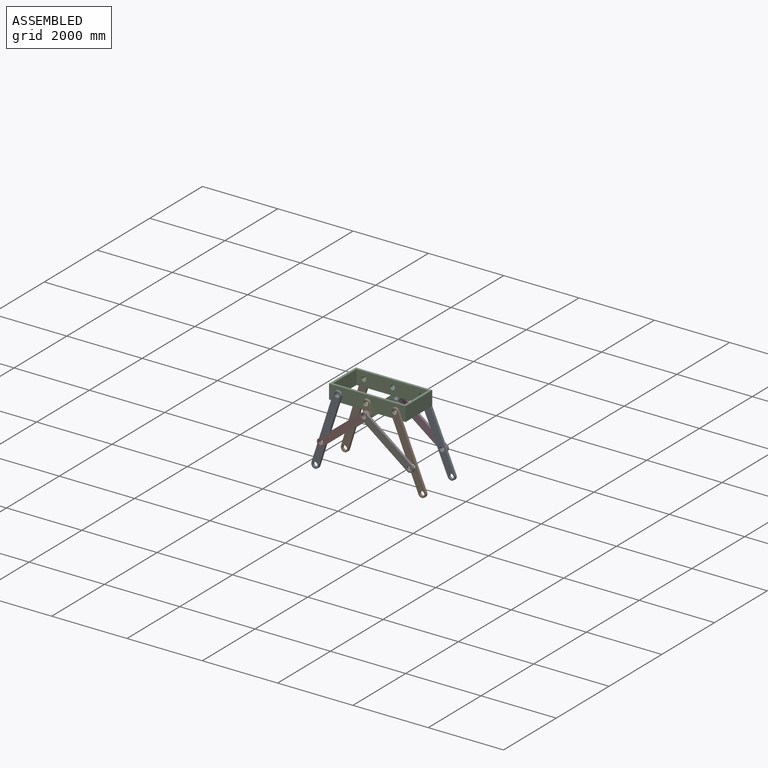
[diagram: assembled view]
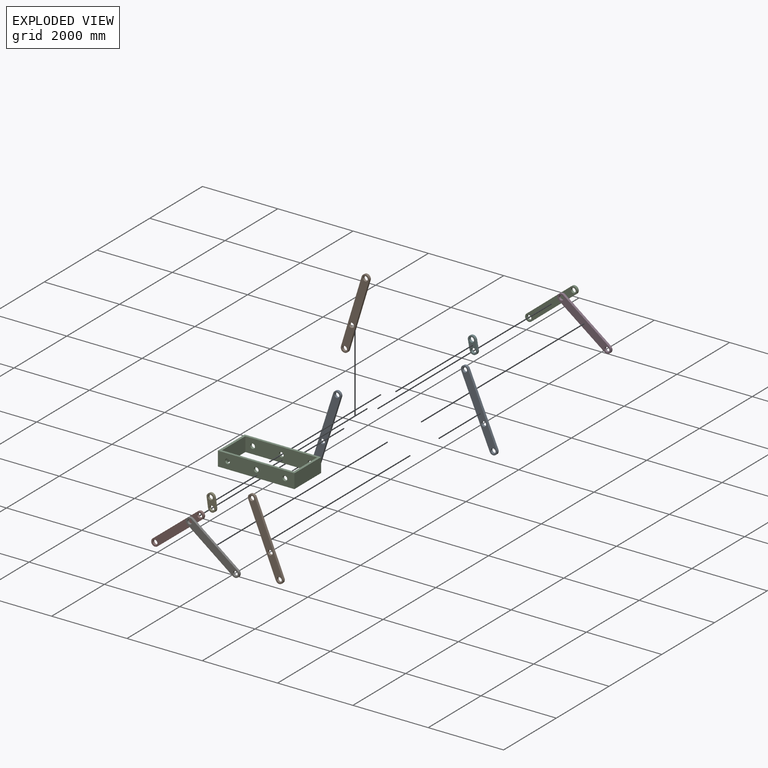
[diagram: exploded view]
GUIDED TOUR — MATED ASSEMBLY (Onshape document 3dce22146bce725d61f7c5aa, AutoMate assembly 3dce22146bce725d61f7c5aa_5e1583285dce9e8a177f980a_4c10a345efe81646cdd41e63_default)

This assembly has 11 components, labeled P0..P10 below (a component is one placed occurrence of a part; the same part can appear more than once), held together by 14 mates. A mate is a constraint between two components; its type names the relative motion it leaves free:
  REVOLUTE — leaves rotation about the listed axis free (a hinge).
Axis/direction vectors are unit vectors and 'through' points are millimeter coordinates, both in the assembly's world frame.

MATES
  1. REVOLUTE "轉動 7": P7 <-> P4, axis (0.000, 1.000, 0.000) through (-197.82, -615.95, -115.00) mm
  2. REVOLUTE "轉動 10": P6 <-> P1, axis (0.000, 1.000, 0.000) through (1016.61, -679.45, -1035.72) mm
  3. REVOLUTE "轉動 4": P1 <-> P2, axis (0.000, 1.000, 0.000) through (527.57, -552.45, 136.35) mm
  4. REVOLUTE "轉動 2": P5 <-> P2, axis (0.000, -1.000, 0.000) through (-234.43, 463.55, 136.35) mm
  5. REVOLUTE "轉動 3": P8 <-> P2, axis (0.000, 1.000, 0.000) through (-996.43, -552.45, 136.35) mm
  6. REVOLUTE "轉動 1": P4 <-> P2, axis (0.000, 1.000, 0.000) through (-234.43, -552.45, 136.35) mm
  7. REVOLUTE "轉動 5": P9 <-> P2, axis (0.000, -1.000, 0.000) through (-996.43, 463.55, 136.35) mm
  8. REVOLUTE "轉動 9": P7 <-> P8, axis (0.000, 1.000, 0.000) through (-1382.67, -615.95, -1073.49) mm
  9. REVOLUTE "轉動 12": P10 <-> P3, axis (0.000, -1.000, 0.000) through (-185.55, 590.55, -112.90) mm
  10. REVOLUTE "轉動 6": P0 <-> P2, axis (0.000, -1.000, 0.000) through (527.57, 463.55, 136.35) mm
  11. REVOLUTE "轉動 11": P3 <-> P5, axis (0.000, -1.000, 0.000) through (-185.55, 527.05, -112.90) mm
  12. REVOLUTE "轉動 13": P3 <-> P0, axis (0.000, -1.000, 0.000) through (1032.36, 527.05, -1029.02) mm
  13. REVOLUTE "轉動 14": P10 <-> P9, axis (0.000, -1.000, 0.000) through (-1363.95, 590.55, -1079.31) mm
  14. REVOLUTE "轉動 8": P6 <-> P7, axis (0.000, 1.000, 0.000) through (-197.82, -679.45, -115.00) mm

ASSEMBLY ORDER
  1. P8 — the base component [order verified]
  2. P4 [order verified]
  3. P1 [order verified]
  4. P2 [order verified]
  5. P7 [order verified]
  6. P5 [order verified]
  7. P6 [order verified]
  8. P0 [order verified]
  9. P9 [order verified]
  10. P10 [order verified]
  11. P3 [order verified]
Order-tag legend:
  [order verified] — this step's position reverses a verified removal order: the component was checked to insert without passing through the ones already placed.

Of the 11 components, 11 carry the full construction recipe — the FeatureScript program that regenerates the part's solid from scratch; the rest are supplied as boundary geometry only.
Each toured component is shown spotlighted twice — in the assembled view, then in the exploded view, where a leader line traces a displaced component back to its assembled socket (saturated green if recipe-attached, orange if geometry-only; every other component desaturated gray) — followed by its recipe or geometry summary and the mates that hold it.
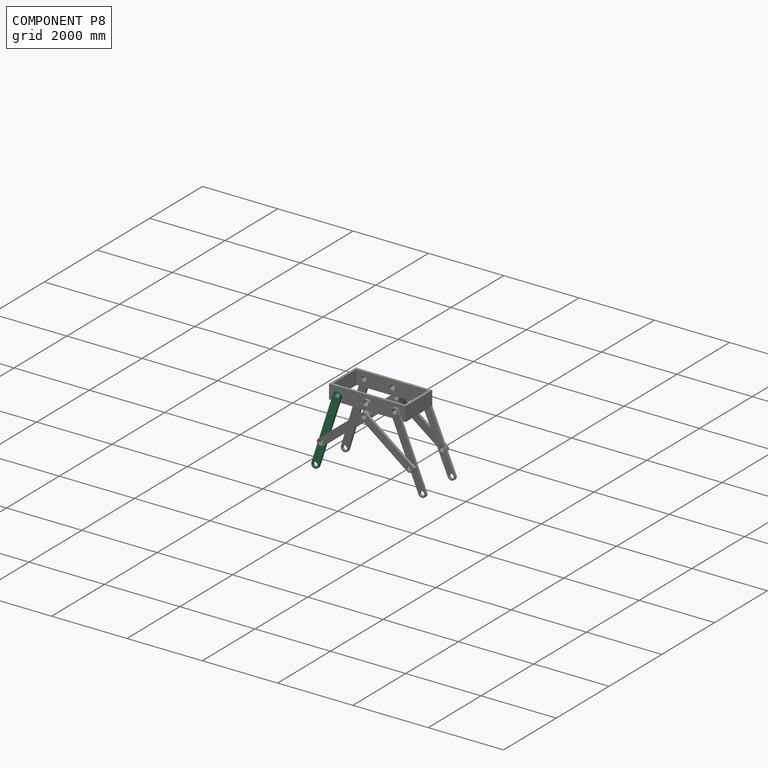
[diagram: component P8 — assembled]
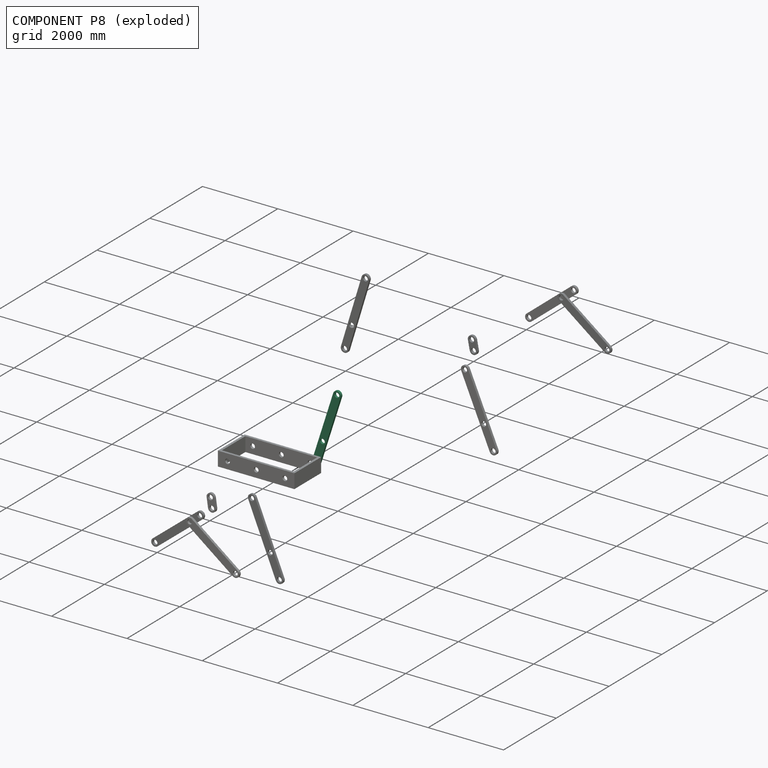
[diagram: component P8 — exploded]
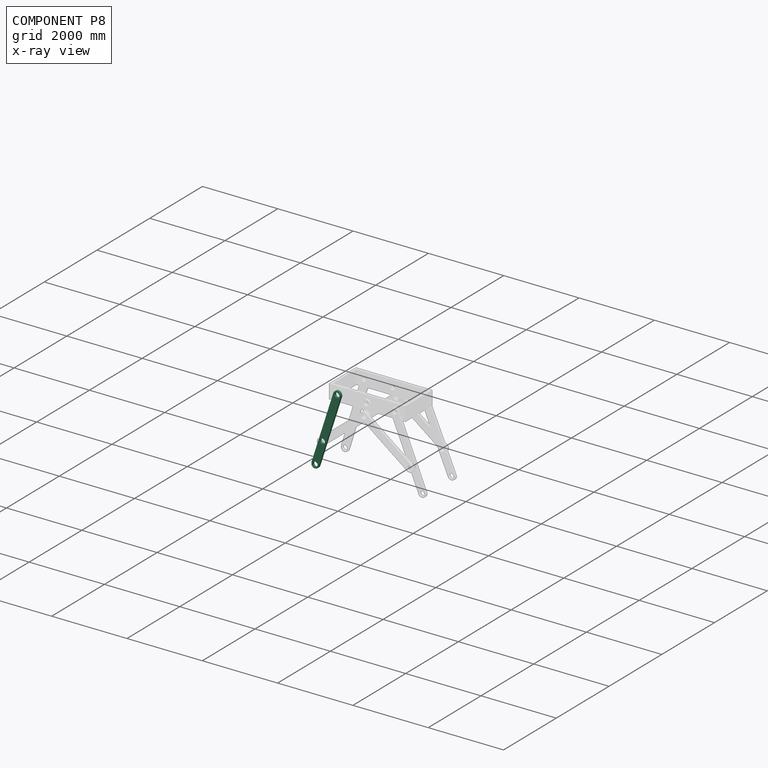
[diagram: component P8 — x-ray view]
COMPONENT P8 — same part as P0 (CADFS 00741335); its construction recipe is shown at P0.
Held by: REVOLUTE mate "轉動 3" to P2; REVOLUTE mate "轉動 9" to P7.
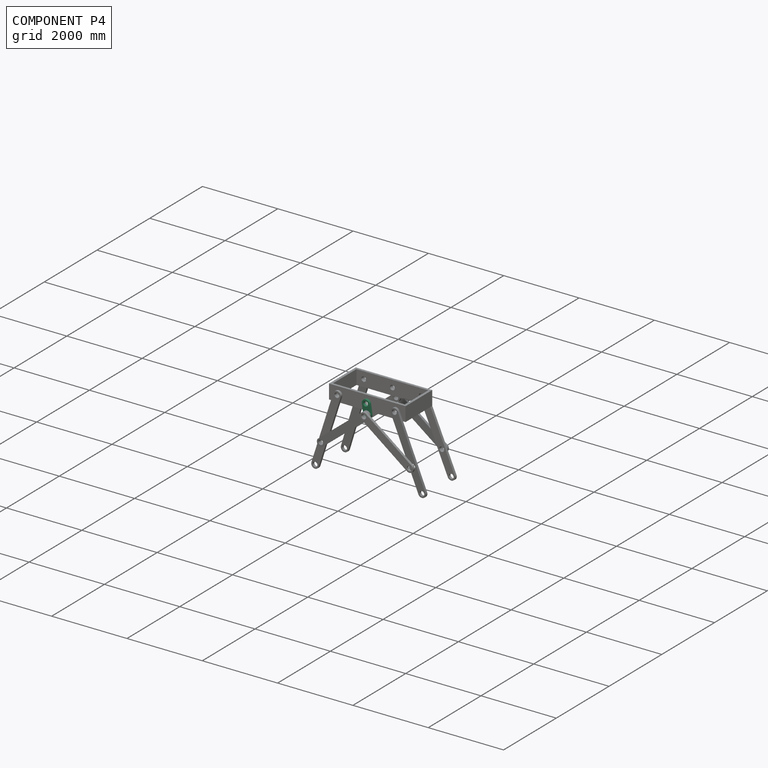
[diagram: component P4 — assembled]
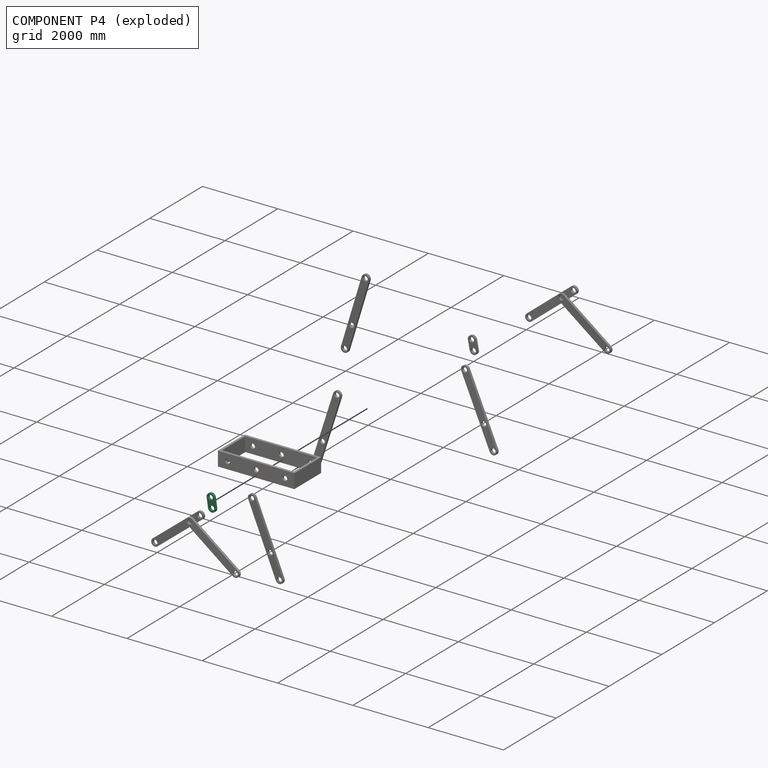
[diagram: component P4 — exploded]
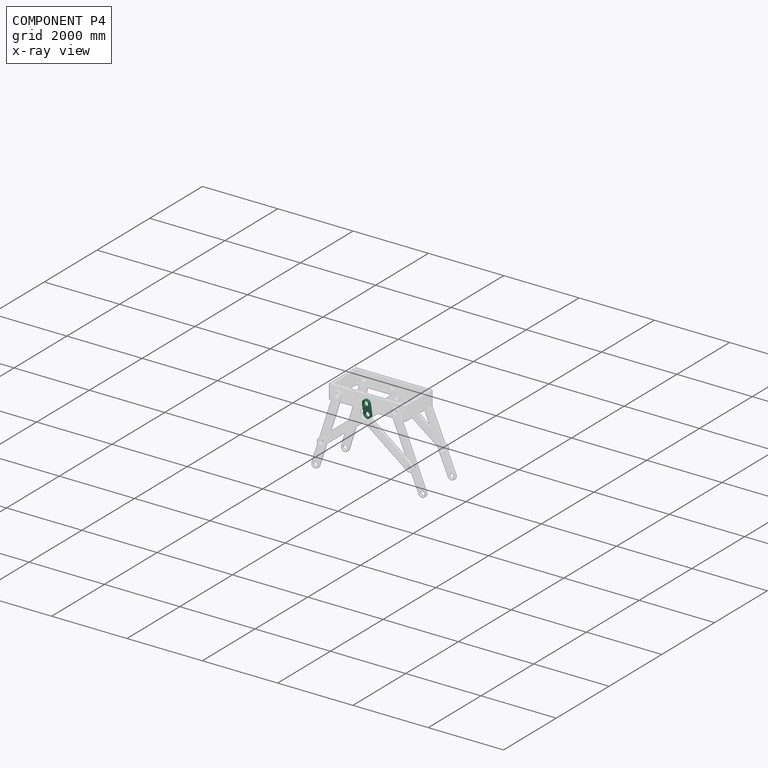
[diagram: component P4 — x-ray view]
COMPONENT P4 — recipe-attached (CADFS 00741354, mesh-verified: the recipe's output STEP matches this component's geometry to below the mesh-comparison resolution (tessellation chordal tolerance ~0.756 mm)).
Held by: REVOLUTE mate "轉動 7" to P7; REVOLUTE mate "轉動 1" to P2.
Construction recipe (FeatureScript — the CAD program that rebuilds this solid; sketch coordinates are in the units given by the * unit suffixes, e.g. mm):

FeatureScript 1511;
import(path : "onshape/std/geometry.fs", version : "1511.0");
import(path : "onshape/std/common.fs", version : "1511.0");
const mm = millimeter;
const VERTEX = EntityType.VERTEX;
const EDGE = EntityType.EDGE;
const FACE = EntityType.FACE;
const BODY = EntityType.BODY;
function v(x, y){return vector(x, y);}
function OD(order){return orderDisambiguation(order);}
function OSD(set){return originalSetDisambiguation(set);}
function TD(topology){return topologyDisambiguation(topology);}
function TDD(query){return trueDependencyDisambiguation(query);}
function sQuery(a, b, c) {return sketchEntityQuery(a, b, c);}

annotation { "Feature Type Name" : "Feature", "Feature Type Description" : "" }
export const myFeature = defineFeature(function(context is Context, id is Id, definition is map)
    precondition{}
    {
        {
            var Q0;
            Q0=qCreatedBy(makeId("Front.planeOp"),FACE);
            var sketch = newSketch(context, id + "F0", { "sketchPlane" : qUnion([Q0])});
            skArc(sketch, "E0", {"start": v(-127, 101.6) * mm, "mid": v(-228.6, 0) * mm, "end": v(-127, -101.6) * mm});
            skArc(sketch, "E1", {"start": v(127, -101.6) * mm, "mid": v(228.6, 0) * mm, "end": v(127, 101.6) * mm});
            skLineSegment(sketch, "E2", {"start": v(-127, 101.6) * mm, "end": v(127, 101.6) * mm});
            skLineSegment(sketch, "E3", {"start": v(127, -101.6) * mm, "end": v(-127, -101.6) * mm});
            skCircle(sketch, "E4", {"center": v(127, 0) * mm, "radius": 63.5 * mm});
            skCircle(sketch, "E5", {"center": v(-127, 0) * mm, "radius": 63.5 * mm});
            skSolve(sketch);
        }
        {
            var Q0;
            Q0 = qSketchRegion(id + "F0", true);
            extrude(context, id + "F1", {"entities" : qUnion([Q0]), "endBound" : BoundingType.SYMMETRIC, "depth" : 63.5 * mm, "offsetDistance" : 25.4 * mm});
        }
    });
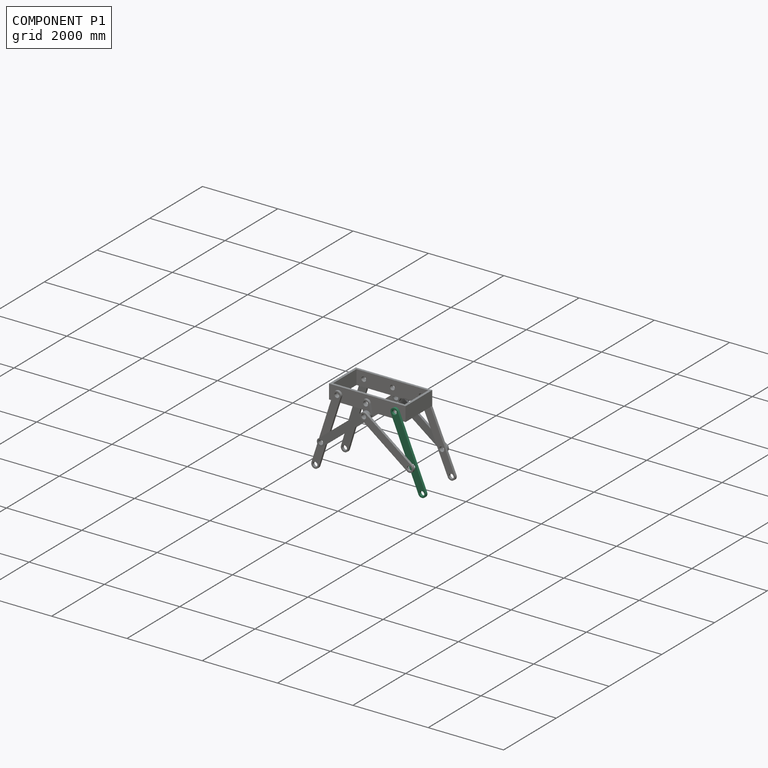
[diagram: component P1 — assembled]
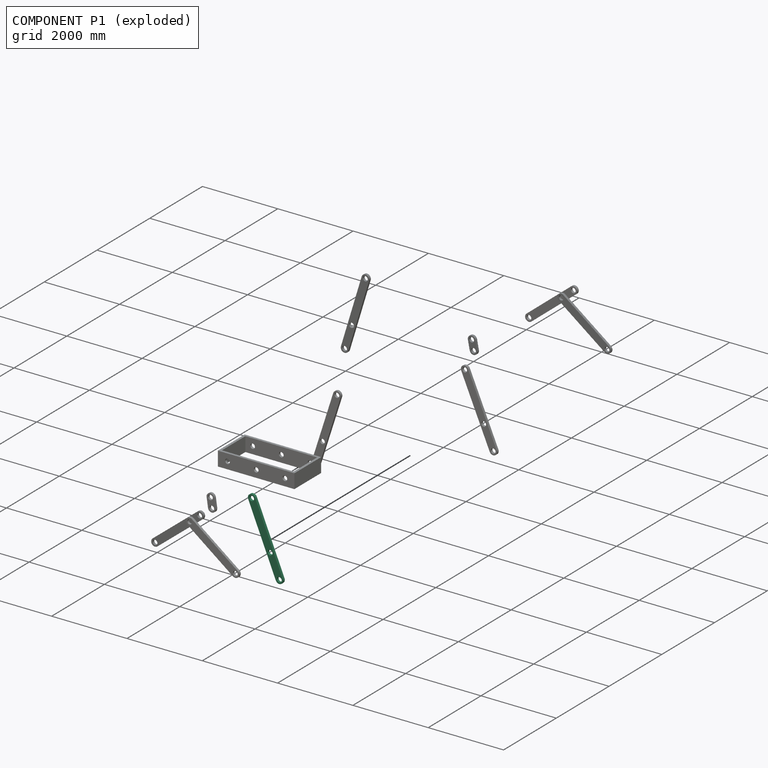
[diagram: component P1 — exploded]
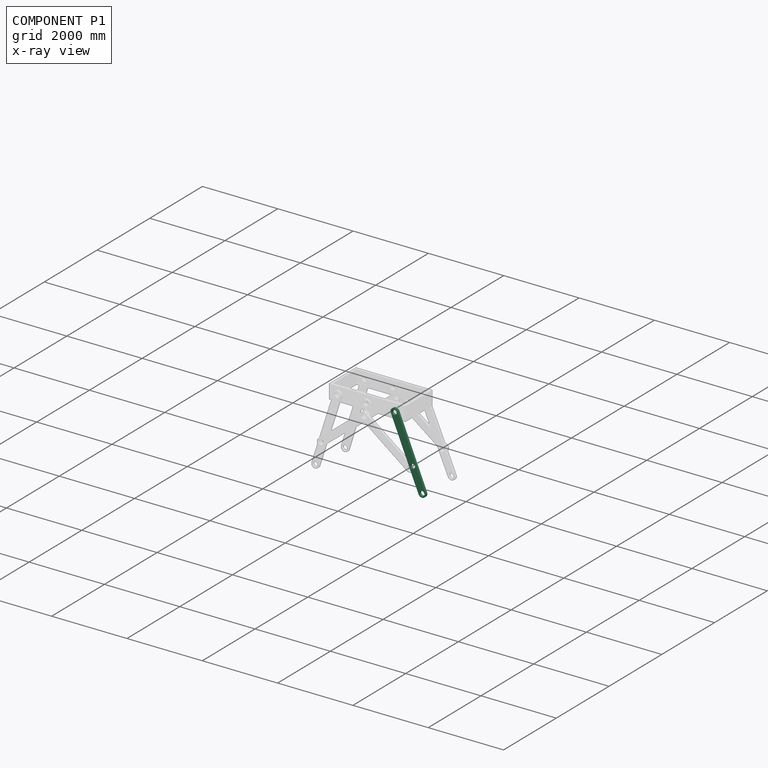
[diagram: component P1 — x-ray view]
COMPONENT P1 — same part as P0 (CADFS 00741335); its construction recipe is shown at P0.
Held by: REVOLUTE mate "轉動 10" to P6; REVOLUTE mate "轉動 4" to P2.
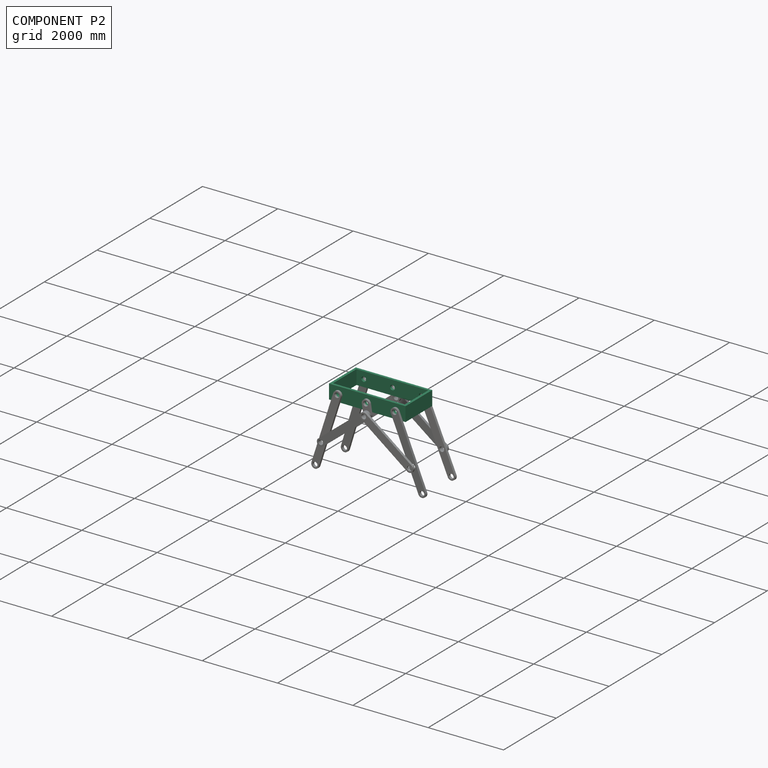
[diagram: component P2 — assembled]
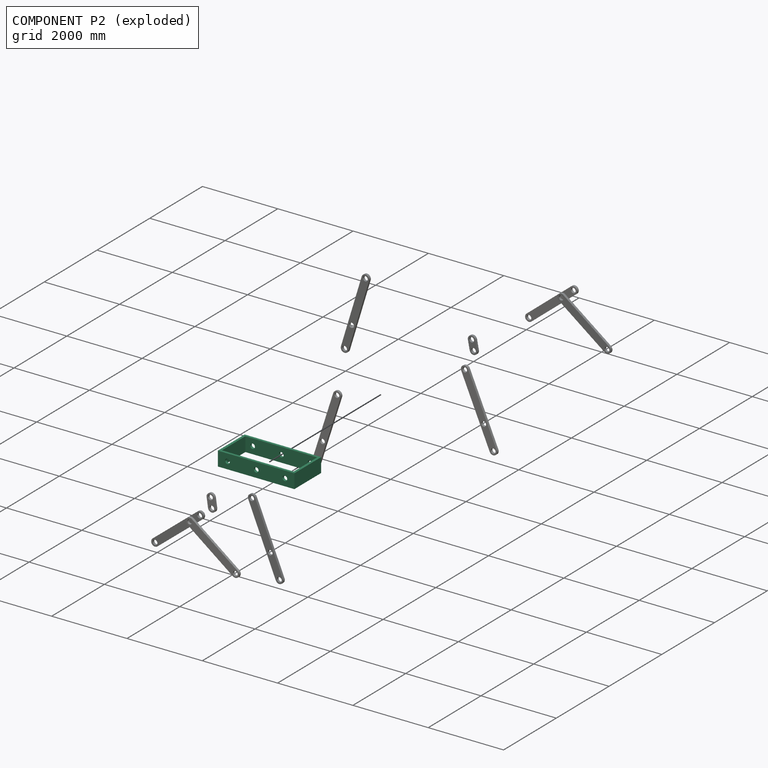
[diagram: component P2 — exploded]
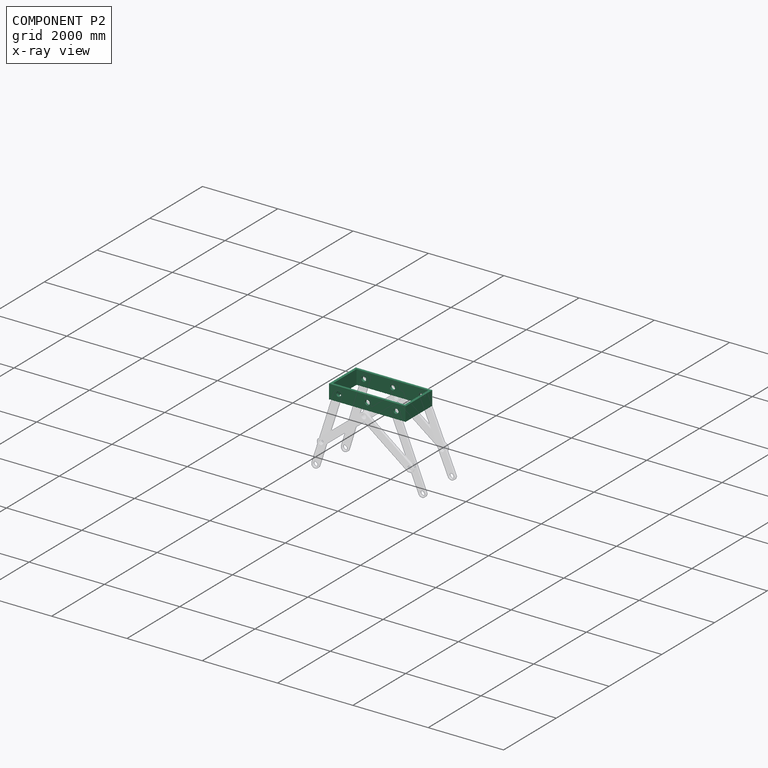
[diagram: component P2 — x-ray view]
COMPONENT P2 — recipe-attached (CADFS 00741367, mesh-verified: the recipe's output STEP matches this component's geometry to below the mesh-comparison resolution (tessellation chordal tolerance ~3.46 mm)).
Held by: REVOLUTE mate "轉動 4" to P1; REVOLUTE mate "轉動 2" to P5; REVOLUTE mate "轉動 3" to P8; REVOLUTE mate "轉動 1" to P4; REVOLUTE mate "轉動 5" to P9; REVOLUTE mate "轉動 6" to P0.
Construction recipe (FeatureScript — the CAD program that rebuilds this solid; sketch coordinates are in the units given by the * unit suffixes, e.g. mm):

FeatureScript 1511;
import(path : "onshape/std/geometry.fs", version : "1511.0");
import(path : "onshape/std/common.fs", version : "1511.0");
const mm = millimeter;
const VERTEX = EntityType.VERTEX;
const EDGE = EntityType.EDGE;
const FACE = EntityType.FACE;
const BODY = EntityType.BODY;
function v(x, y){return vector(x, y);}
function OD(order){return orderDisambiguation(order);}
function OSD(set){return originalSetDisambiguation(set);}
function TD(topology){return topologyDisambiguation(topology);}
function TDD(query){return trueDependencyDisambiguation(query);}
function sQuery(a, b, c) {return sketchEntityQuery(a, b, c);}

annotation { "Feature Type Name" : "Feature", "Feature Type Description" : "" }
export const myFeature = defineFeature(function(context is Context, id is Id, definition is map)
    precondition{}
    {
        {
            var Q0;
            Q0=qCreatedBy(makeId("Top.planeOp"),FACE);
            var sketch = newSketch(context, id + "F0", { "sketchPlane" : qUnion([Q0])});
            skLineSegment(sketch, "E0.bottom", {"start": v(1016, 508) * mm, "end": v(-1016, 508) * mm});
            skLineSegment(sketch, "E0.top", {"start": v(1016, -508) * mm, "end": v(-1016, -508) * mm});
            skLineSegment(sketch, "E0.left", {"start": v(1016, 508) * mm, "end": v(1016, -508) * mm});
            skLineSegment(sketch, "E0.right", {"start": v(-1016, 508) * mm, "end": v(-1016, -508) * mm});
            skPoint(sketch, "E0.middle", {"position": v(0, 0) * mm});
            skLineSegment(sketch, "E1.bottom", {"start": v(952.5, 444.5) * mm, "end": v(-952.5, 444.5) * mm});
            skLineSegment(sketch, "E1.top", {"start": v(952.5, -444.5) * mm, "end": v(-952.5, -444.5) * mm});
            skLineSegment(sketch, "E1.left", {"start": v(952.5, 444.5) * mm, "end": v(952.5, -444.5) * mm});
            skLineSegment(sketch, "E1.right", {"start": v(-952.5, 444.5) * mm, "end": v(-952.5, -444.5) * mm});
            skSolve(sketch);
        }
        {
            var Q0;
            Q0 = qSketchRegion(id + "F0", true);
            extrude(context, id + "F1", {"entities" : qUnion([Q0]), "endBound" : BoundingType.SYMMETRIC, "depth" : 381 * mm, "offsetDistance" : 25.4 * mm});
        }
        {
            var Q0;
            Q0=makeQuery(id+"F1.opExtrude","SWEPT_FACE",FACE,{"disambiguationData":[OSD([sQuery(id+"F0.wireOp",EDGE,"E0.top")])]});
            var sketch = newSketch(context, id + "F2", { "sketchPlane" : qUnion([Q0])});
            skLineSegment(sketch, "E2", {"start": v(-762, 0) * mm, "end": v(762, 0) * mm});
            skCircle(sketch, "E3", {"center": v(0, 0) * mm, "radius": 63.5 * mm});
            skCircle(sketch, "E4", {"center": v(762, 0) * mm, "radius": 63.5 * mm});
            skCircle(sketch, "E5", {"center": v(-762, 0) * mm, "radius": 63.5 * mm});
            skSolve(sketch);
        }
        {
            var Q0;
            Q0 = qSketchRegion(id + "F2", true);
            extrude(context, id + "F3", {"entities" : qUnion([Q0]), "operationType" : NewBodyOperationType.REMOVE, "endBound" : BoundingType.THROUGH_ALL, "oppositeDirection" : true, "depth" : 25.4 * mm, "offsetDistance" : 25.4 * mm});
        }
    });
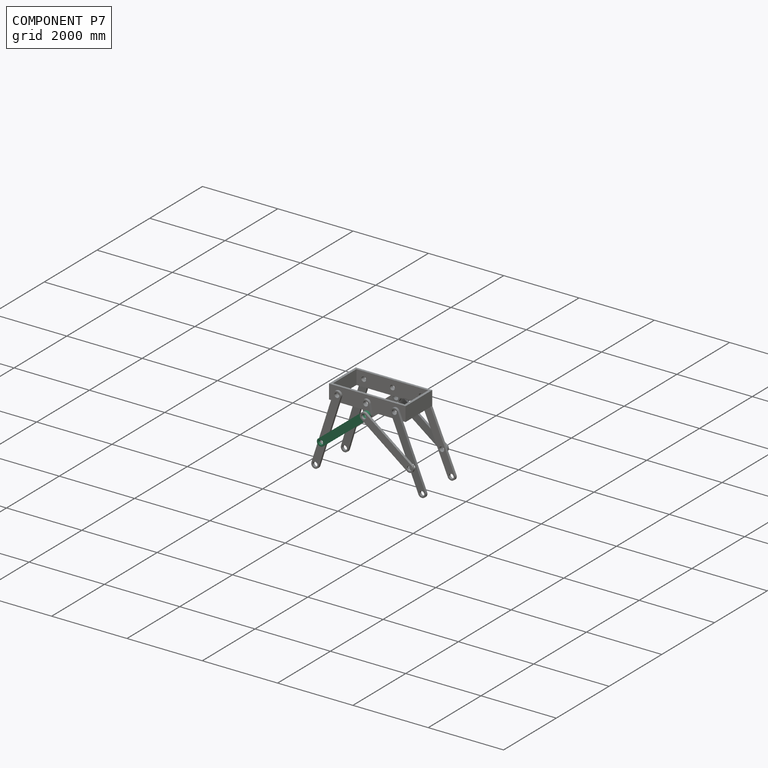
[diagram: component P7 — assembled]
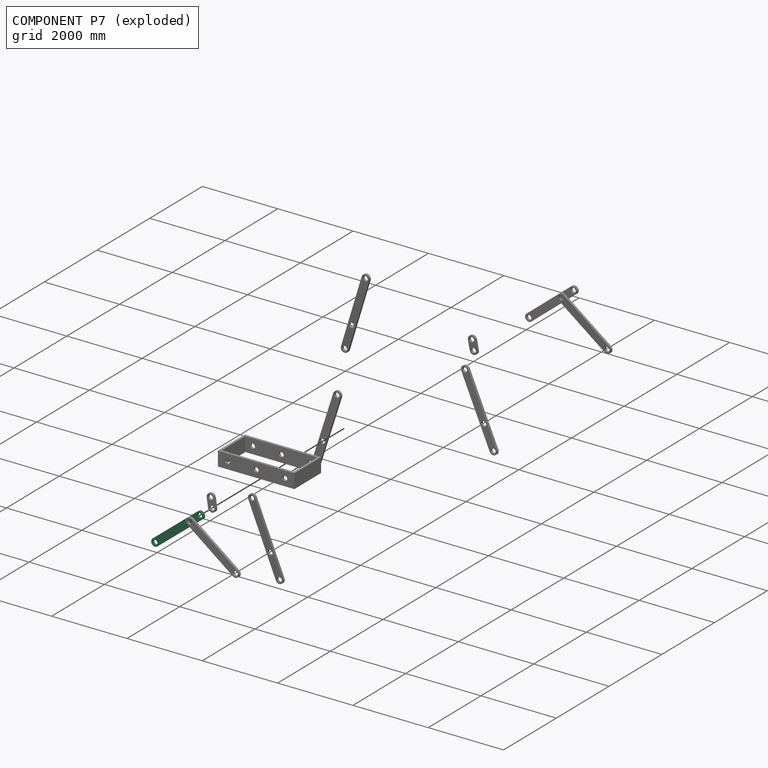
[diagram: component P7 — exploded]
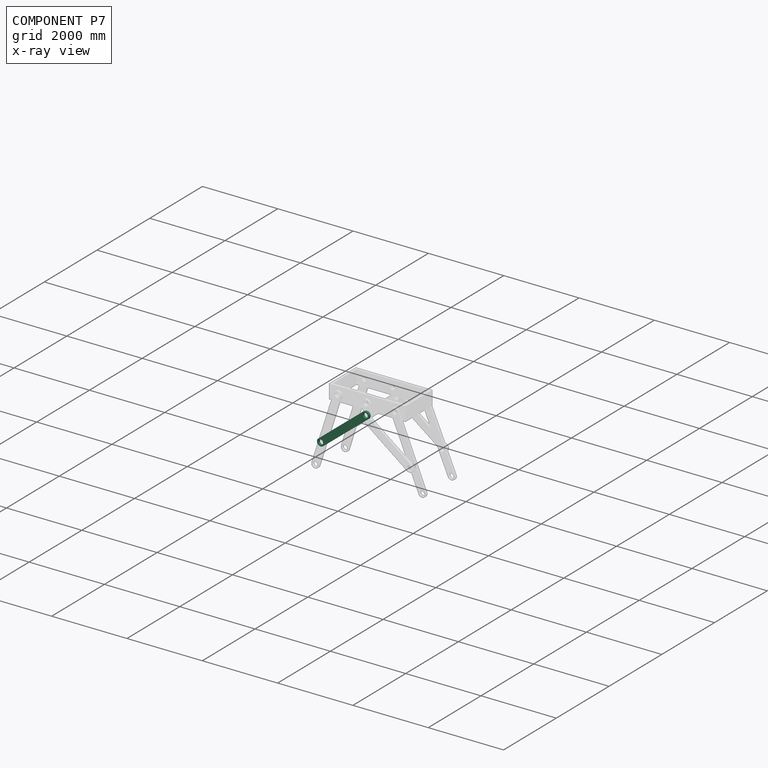
[diagram: component P7 — x-ray view]
COMPONENT P7 — same part as P3 (CADFS 00741346); its construction recipe is shown at P3.
Held by: REVOLUTE mate "轉動 7" to P4; REVOLUTE mate "轉動 9" to P8; REVOLUTE mate "轉動 8" to P6.
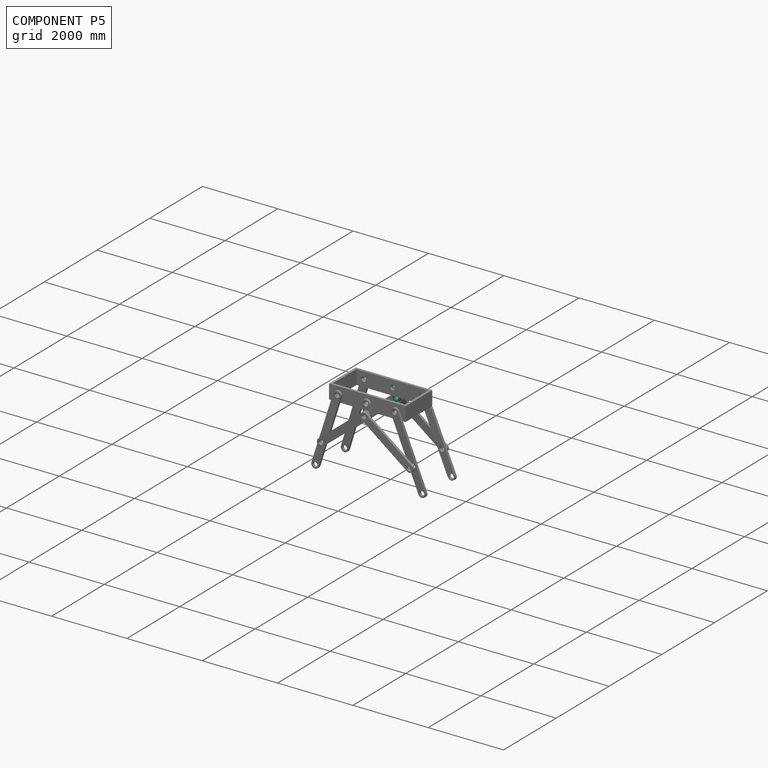
[diagram: component P5 — assembled]
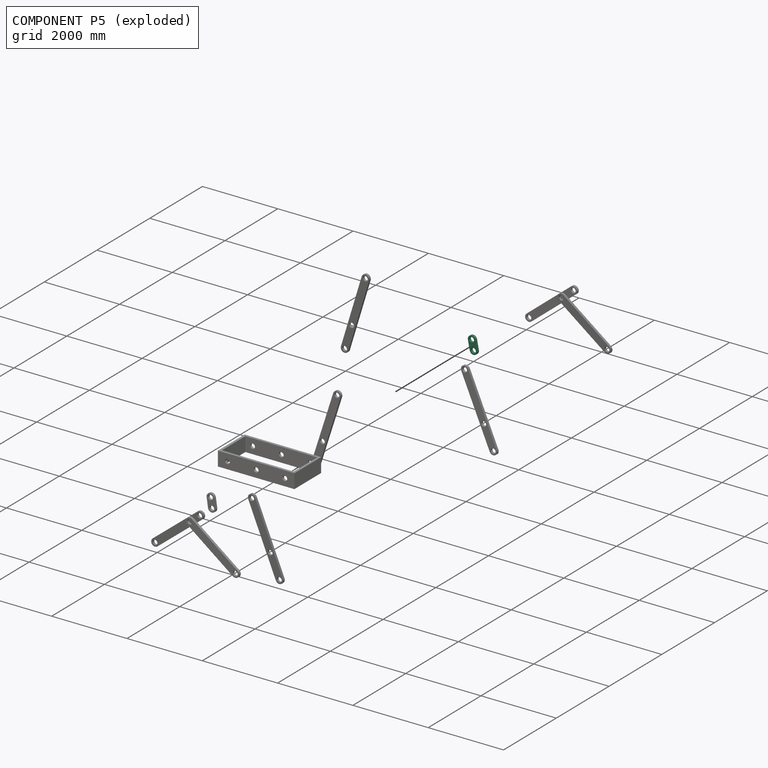
[diagram: component P5 — exploded]
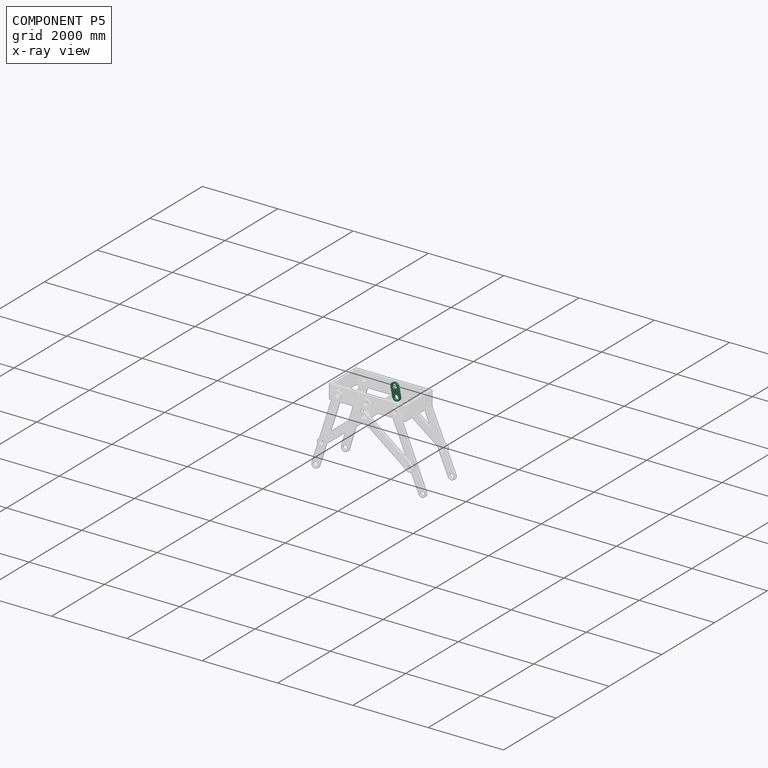
[diagram: component P5 — x-ray view]
COMPONENT P5 — same part as P4 (CADFS 00741354); its construction recipe is shown at P4.
Held by: REVOLUTE mate "轉動 2" to P2; REVOLUTE mate "轉動 11" to P3.
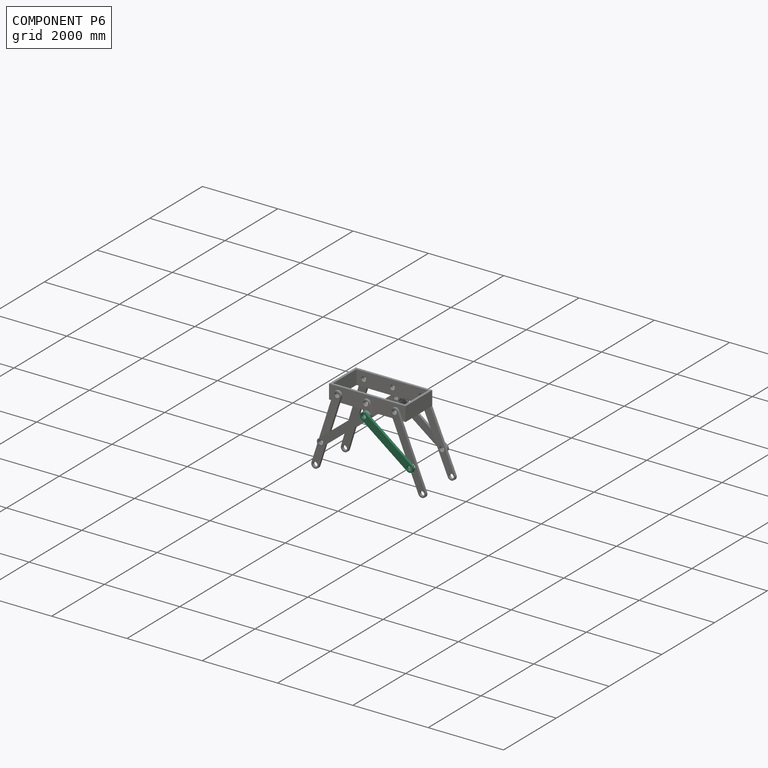
[diagram: component P6 — assembled]
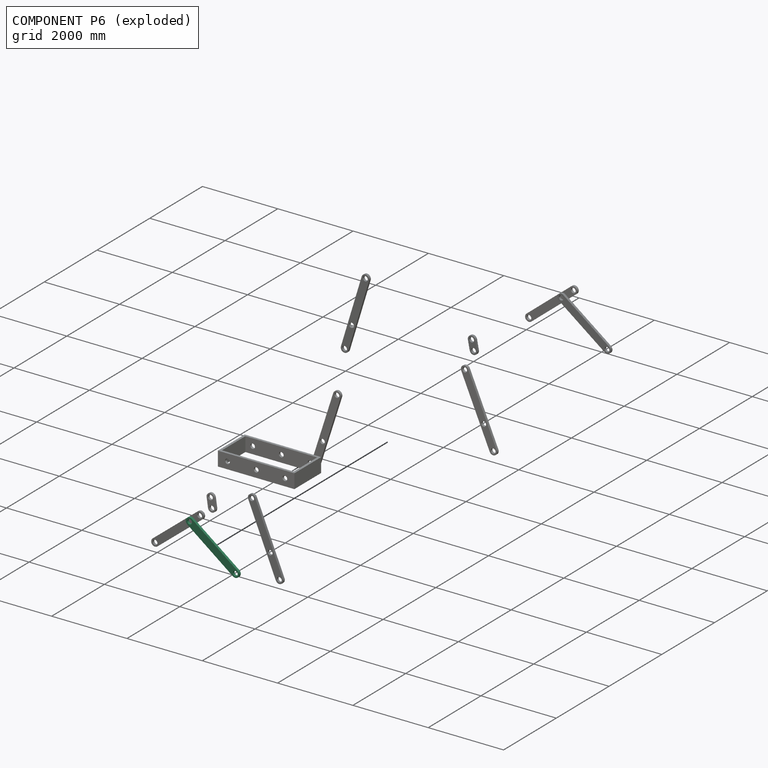
[diagram: component P6 — exploded]
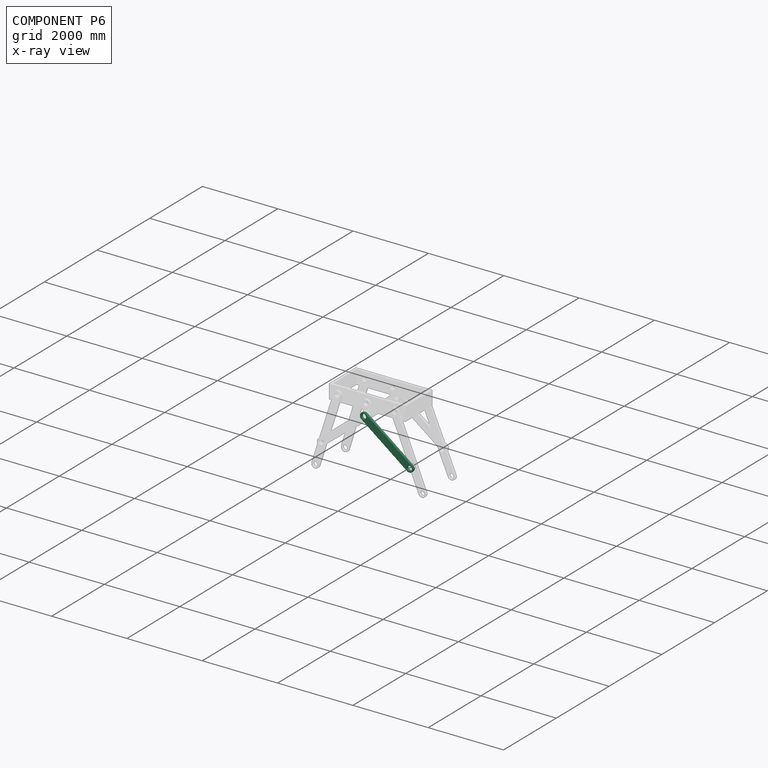
[diagram: component P6 — x-ray view]
COMPONENT P6 — same part as P3 (CADFS 00741346); its construction recipe is shown at P3.
Held by: REVOLUTE mate "轉動 10" to P1; REVOLUTE mate "轉動 8" to P7.
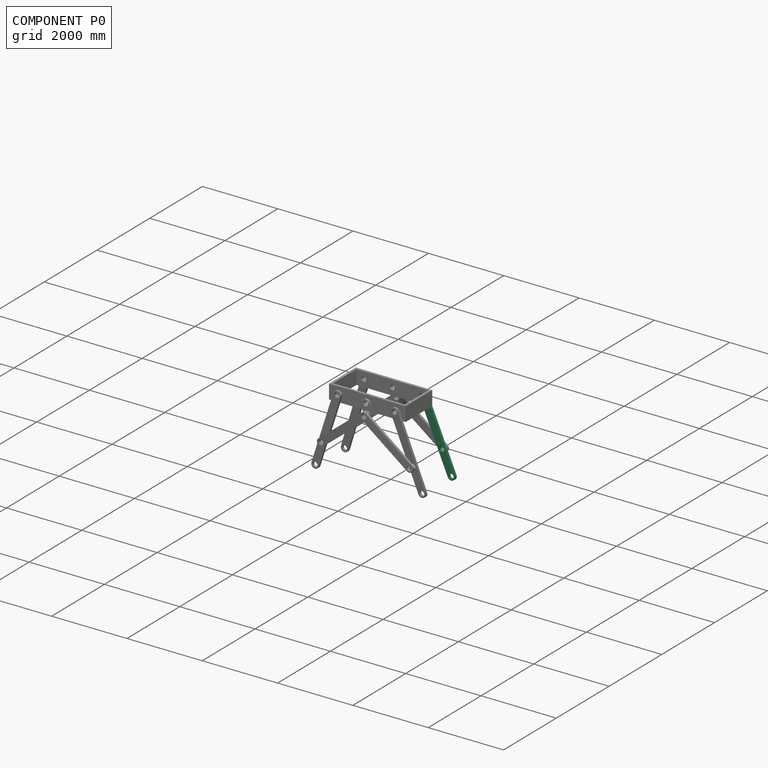
[diagram: component P0 — assembled]
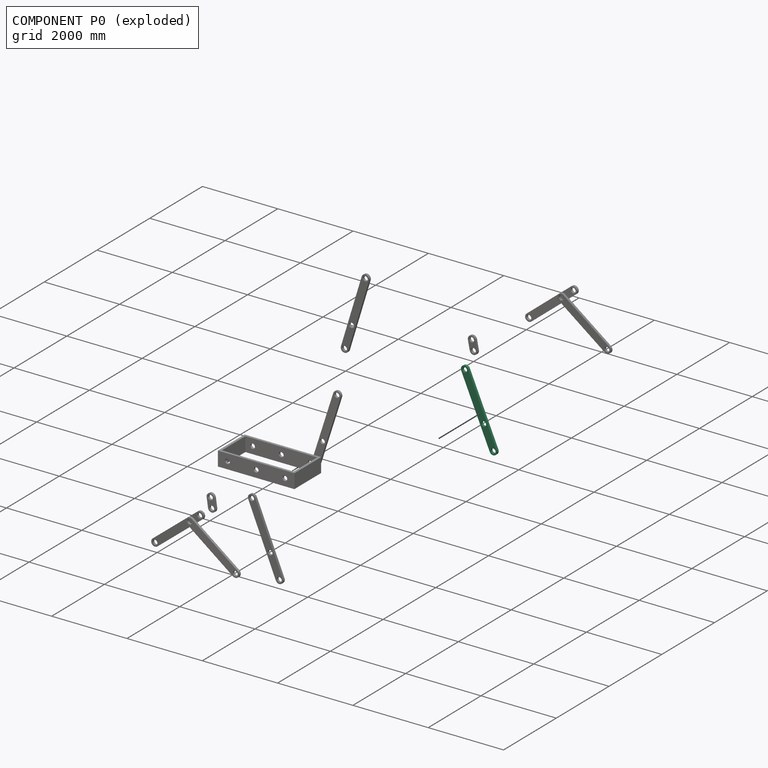
[diagram: component P0 — exploded]
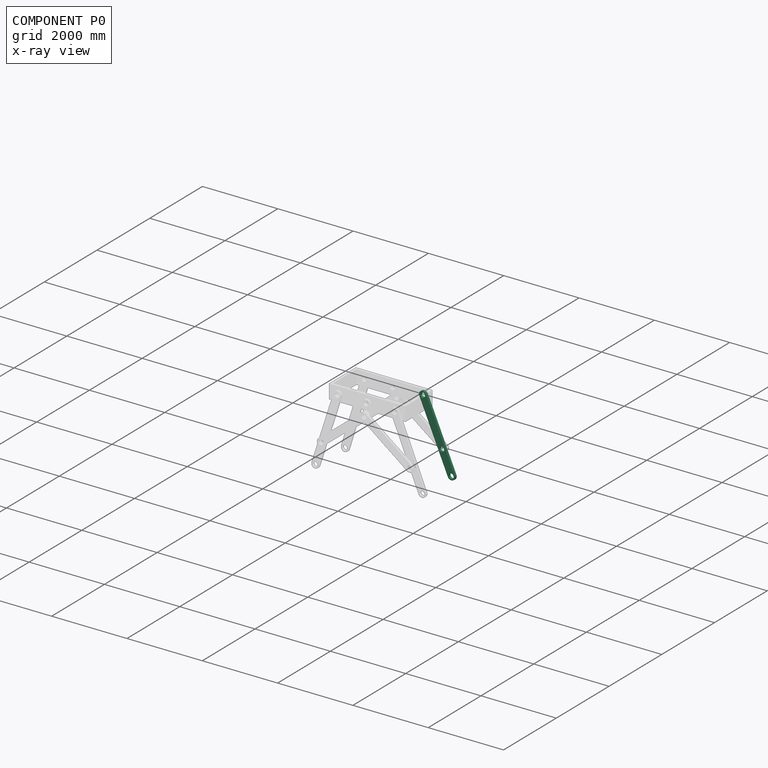
[diagram: component P0 — x-ray view]
COMPONENT P0 — recipe-attached (CADFS 00741335, mesh-verified: the recipe's output STEP matches this component's geometry to below the mesh-comparison resolution (tessellation chordal tolerance ~3.18 mm)).
Held by: REVOLUTE mate "轉動 6" to P2; REVOLUTE mate "轉動 13" to P3.
Construction recipe (FeatureScript — the CAD program that rebuilds this solid; sketch coordinates are in the units given by the * unit suffixes, e.g. mm):

FeatureScript 1511;
import(path : "onshape/std/geometry.fs", version : "1511.0");
import(path : "onshape/std/common.fs", version : "1511.0");
const mm = millimeter;
const VERTEX = EntityType.VERTEX;
const EDGE = EntityType.EDGE;
const FACE = EntityType.FACE;
const BODY = EntityType.BODY;
function v(x, y){return vector(x, y);}
function OD(order){return orderDisambiguation(order);}
function OSD(set){return originalSetDisambiguation(set);}
function TD(topology){return topologyDisambiguation(topology);}
function TDD(query){return trueDependencyDisambiguation(query);}
function sQuery(a, b, c) {return sketchEntityQuery(a, b, c);}

annotation { "Feature Type Name" : "Feature", "Feature Type Description" : "" }
export const myFeature = defineFeature(function(context is Context, id is Id, definition is map)
    precondition{}
    {
        {
            var Q0;
            Q0=qCreatedBy(makeId("Front.planeOp"),FACE);
            var sketch = newSketch(context, id + "F0", { "sketchPlane" : qUnion([Q0])});
            skArc(sketch, "E0", {"start": v(-952.5, 101.6) * mm, "mid": v(-1054.1, 0) * mm, "end": v(-952.5, -101.6) * mm});
            skArc(sketch, "E1", {"start": v(952.5, -101.6) * mm, "mid": v(1054.1, 0) * mm, "end": v(952.5, 101.6) * mm});
            skLineSegment(sketch, "E2", {"start": v(-952.5, 101.6) * mm, "end": v(952.5, 101.6) * mm});
            skLineSegment(sketch, "E3", {"start": v(952.5, -101.6) * mm, "end": v(-952.5, -101.6) * mm});
            skCircle(sketch, "E4", {"center": v(-952.5, 0) * mm, "radius": 63.5 * mm});
            skCircle(sketch, "E5", {"center": v(952.5, 0) * mm, "radius": 63.5 * mm});
            skCircle(sketch, "E6", {"center": v(317.5, 0) * mm, "radius": 63.5 * mm});
            skSolve(sketch);
        }
        {
            var Q0;
            Q0 = qSketchRegion(id + "F0", true);
            extrude(context, id + "F1", {"entities" : qUnion([Q0]), "endBound" : BoundingType.SYMMETRIC, "depth" : 63.5 * mm, "offsetDistance" : 25.4 * mm});
        }
    });
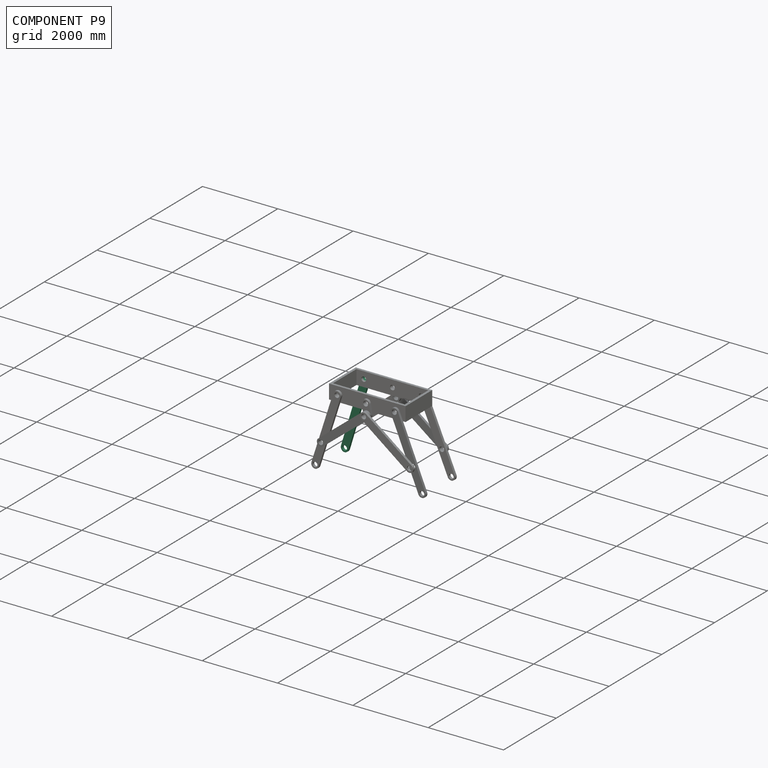
[diagram: component P9 — assembled]
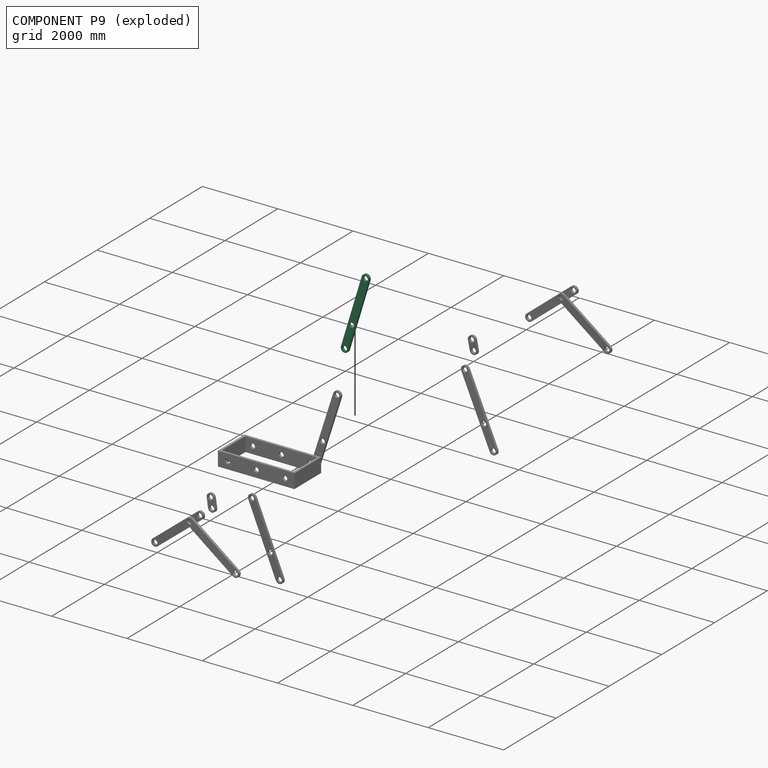
[diagram: component P9 — exploded]
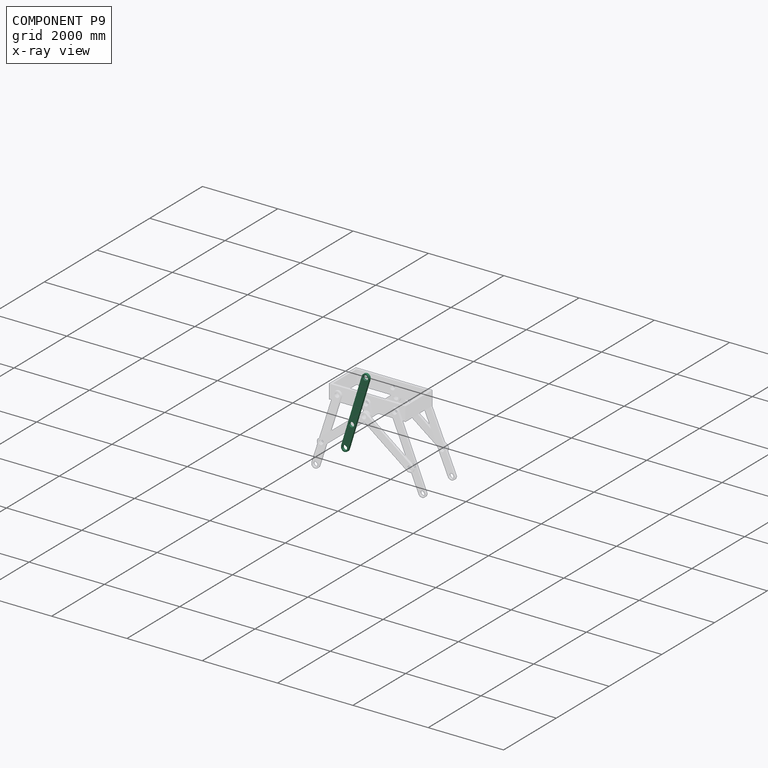
[diagram: component P9 — x-ray view]
COMPONENT P9 — same part as P0 (CADFS 00741335); its construction recipe is shown at P0.
Held by: REVOLUTE mate "轉動 5" to P2; REVOLUTE mate "轉動 14" to P10.
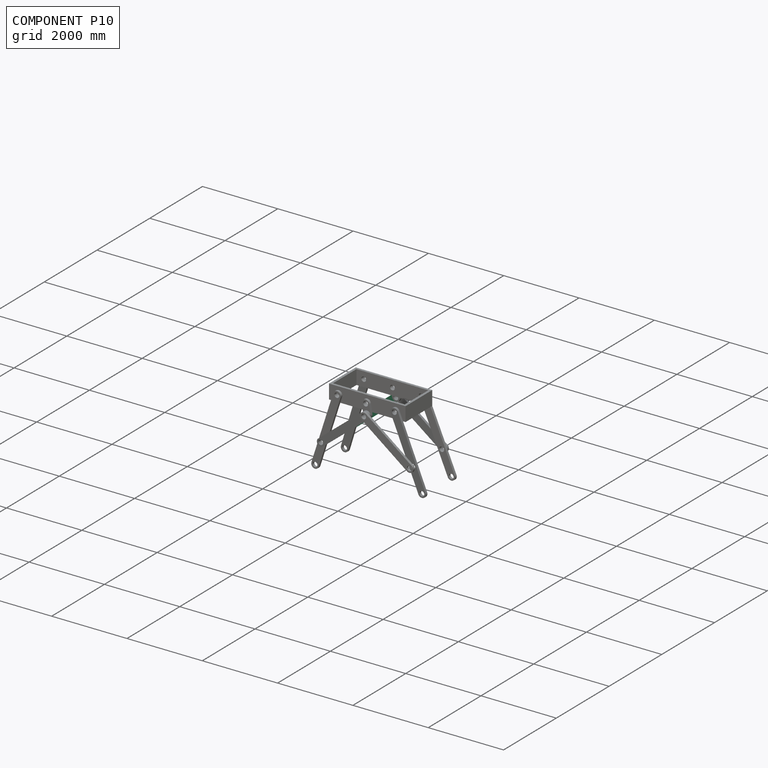
[diagram: component P10 — assembled]
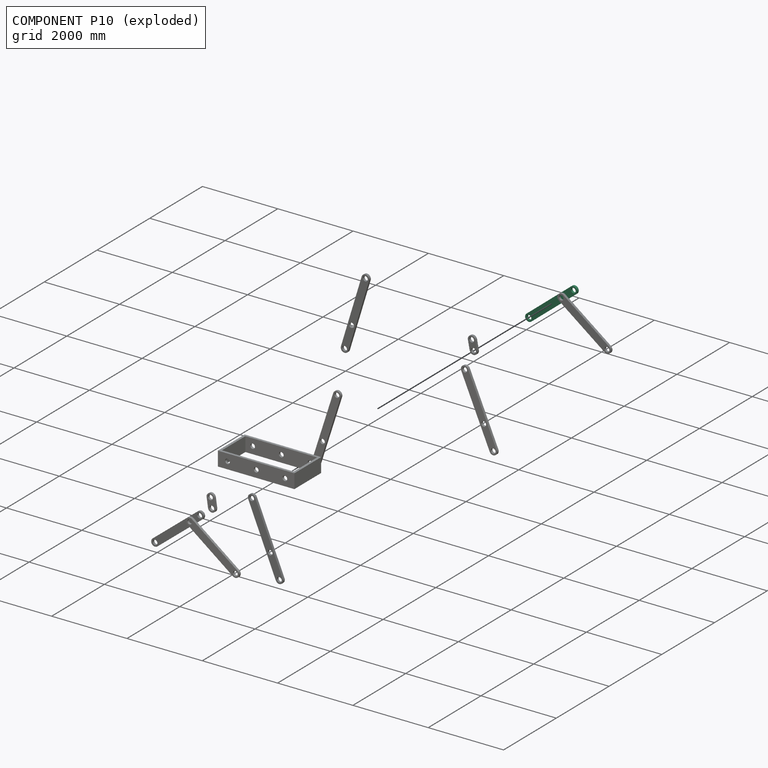
[diagram: component P10 — exploded]
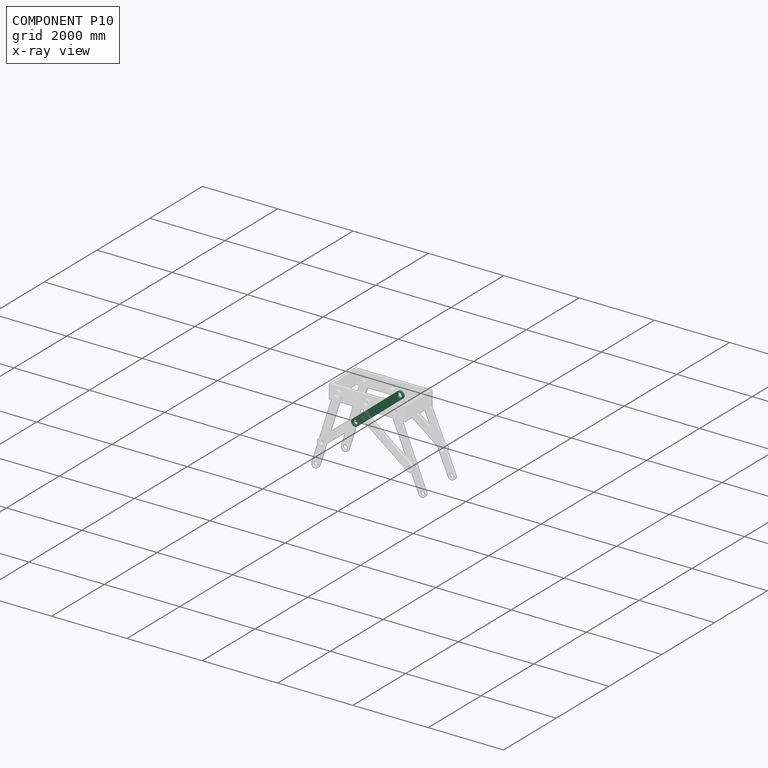
[diagram: component P10 — x-ray view]
COMPONENT P10 — same part as P3 (CADFS 00741346); its construction recipe is shown at P3.
Held by: REVOLUTE mate "轉動 12" to P3; REVOLUTE mate "轉動 14" to P9.
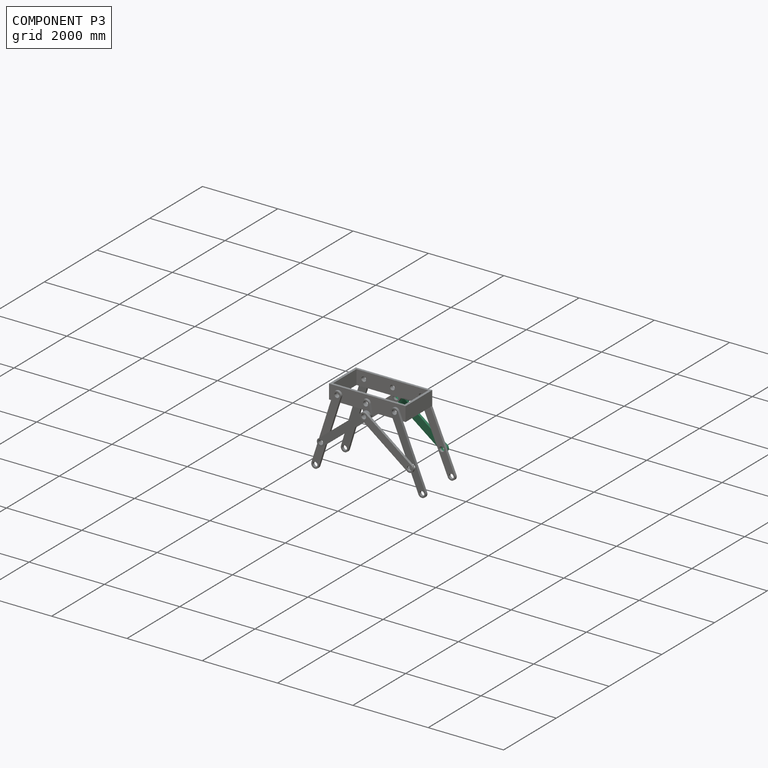
[diagram: component P3 — assembled]
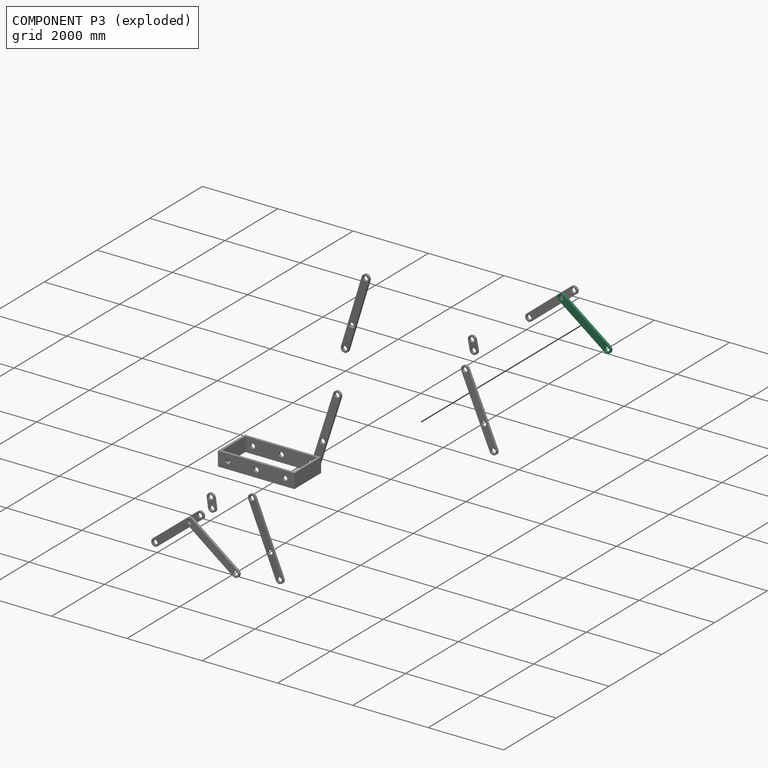
[diagram: component P3 — exploded]
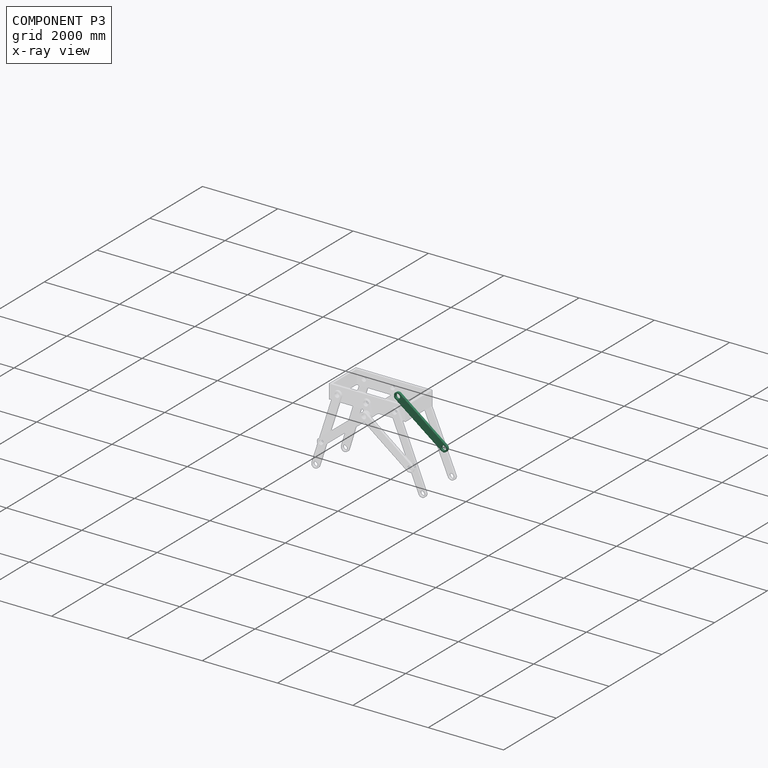
[diagram: component P3 — x-ray view]
COMPONENT P3 — recipe-attached (CADFS 00741346, mesh-verified: the recipe's output STEP matches this component's geometry to below the mesh-comparison resolution (tessellation chordal tolerance ~2.61 mm)).
Held by: REVOLUTE mate "轉動 12" to P10; REVOLUTE mate "轉動 11" to P5; REVOLUTE mate "轉動 13" to P0.
Construction recipe (FeatureScript — the CAD program that rebuilds this solid; sketch coordinates are in the units given by the * unit suffixes, e.g. mm):

FeatureScript 1511;
import(path : "onshape/std/geometry.fs", version : "1511.0");
import(path : "onshape/std/common.fs", version : "1511.0");
const mm = millimeter;
const VERTEX = EntityType.VERTEX;
const EDGE = EntityType.EDGE;
const FACE = EntityType.FACE;
const BODY = EntityType.BODY;
function v(x, y){return vector(x, y);}
function OD(order){return orderDisambiguation(order);}
function OSD(set){return originalSetDisambiguation(set);}
function TD(topology){return topologyDisambiguation(topology);}
function TDD(query){return trueDependencyDisambiguation(query);}
function sQuery(a, b, c) {return sketchEntityQuery(a, b, c);}

annotation { "Feature Type Name" : "Feature", "Feature Type Description" : "" }
export const myFeature = defineFeature(function(context is Context, id is Id, definition is map)
    precondition{}
    {
        {
            var Q0;
            Q0=qCreatedBy(makeId("Front.planeOp"),FACE);
            var sketch = newSketch(context, id + "F0", { "sketchPlane" : qUnion([Q0])});
            skPoint(sketch, "E0.middle", {"position": v(0, 0) * mm});
            skArc(sketch, "E1", {"start": v(762, 101.6) * mm, "mid": v(863.6, 0) * mm, "end": v(762, -101.6) * mm});
            skArc(sketch, "E2", {"start": v(-762, 101.6) * mm, "mid": v(-863.6, 0) * mm, "end": v(-762, -101.6) * mm});
            skCircle(sketch, "E3", {"center": v(-762, 0) * mm, "radius": 63.5 * mm});
            skCircle(sketch, "E4", {"center": v(762, 0) * mm, "radius": 63.5 * mm});
            skLineSegment(sketch, "E5", {"start": v(-762, -101.6) * mm, "end": v(762, -101.6) * mm});
            skLineSegment(sketch, "E6", {"start": v(-762, 101.6) * mm, "end": v(762, 101.6) * mm});
            skSolve(sketch);
        }
        {
            var Q0;
            Q0 = qSketchRegion(id + "F0", true);
            extrude(context, id + "F1", {"entities" : qUnion([Q0]), "endBound" : BoundingType.SYMMETRIC, "depth" : 63.5 * mm, "offsetDistance" : 25.4 * mm});
        }
    });
PROVENANCE & LICENSES
Assembly (occurrences, transforms, mates, per-part STEP geometry): AutoMate dataset, Zenodo record 7776208, CC0.
Construction recipes: CADFS (HuggingFace VladPyatov/CADFS, CC-BY-4.0, layered over the ABC dataset), FeatureScript reconstruction programs keyed by ABC model id.
Join: ABC meta listings map ABC model id -> Onshape documentId; within a shared document, parts are matched by geometric signature (bounding-box dims + volume at 0.1% relative tolerance, exact B-rep face/solid counts).
Verification: 11 of this assembly's 11 components carry a recipe attachment, and every attachment is mesh-verified: the CADFS STEP and the AutoMate member STEP were compared as meshes in their shared local frame (symmetric sampled-point-to-mesh distance); worst across the 11 attachments: below the mesh-comparison resolution (tessellation chordal tolerance ~3.46 mm) on a 2304 mm part.
Renders: orthographic iso camera (az 35 / el 25); the floor grid conveys scale (grid pitch printed in each image; no ruler). In the exploded view each component is displaced by its stored offset vector: the offsets alone carry the explosion direction (mate normal/axis signs are not orientation cues and do not encode it), and separation distances are assigned per mate-chain, not proportionally to assembly-order depth.
